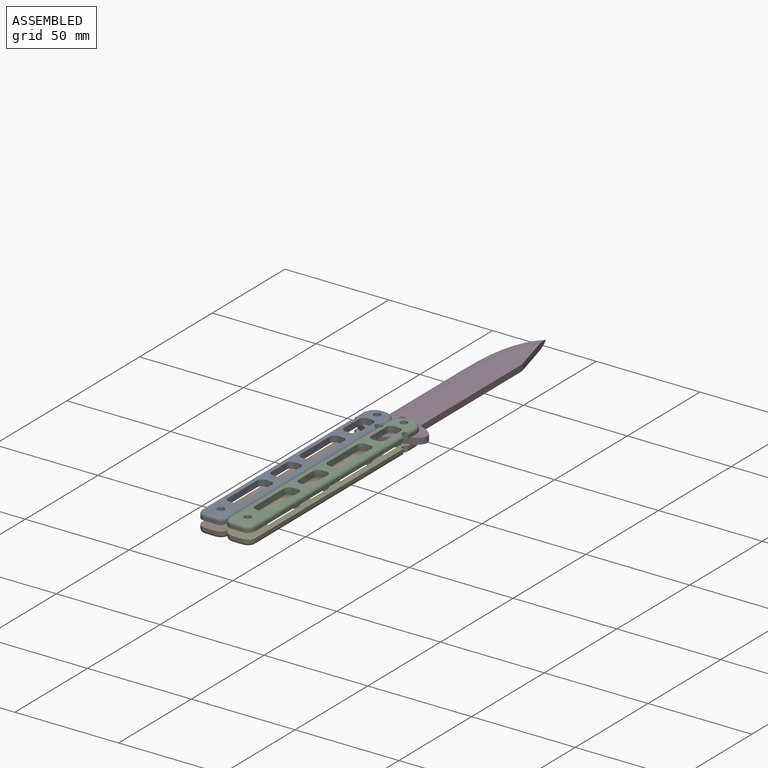
[diagram: assembled view]
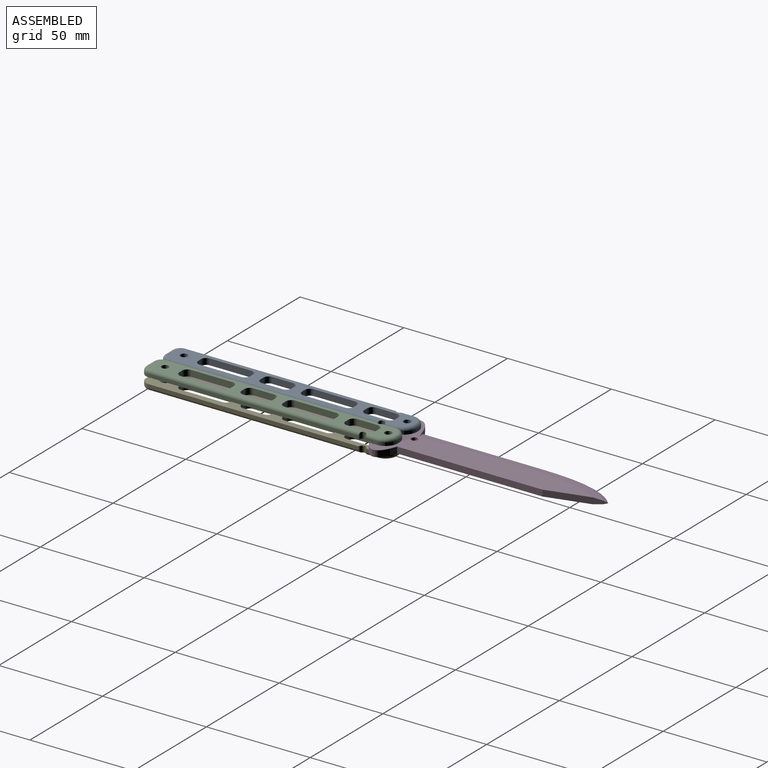
[diagram: assembled view, second angle]
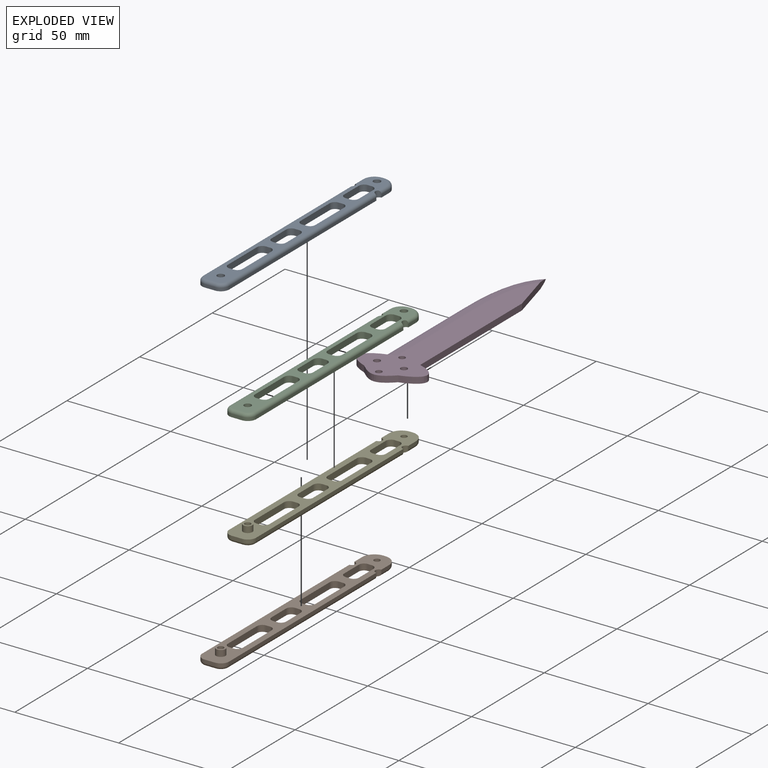
[diagram: exploded view]
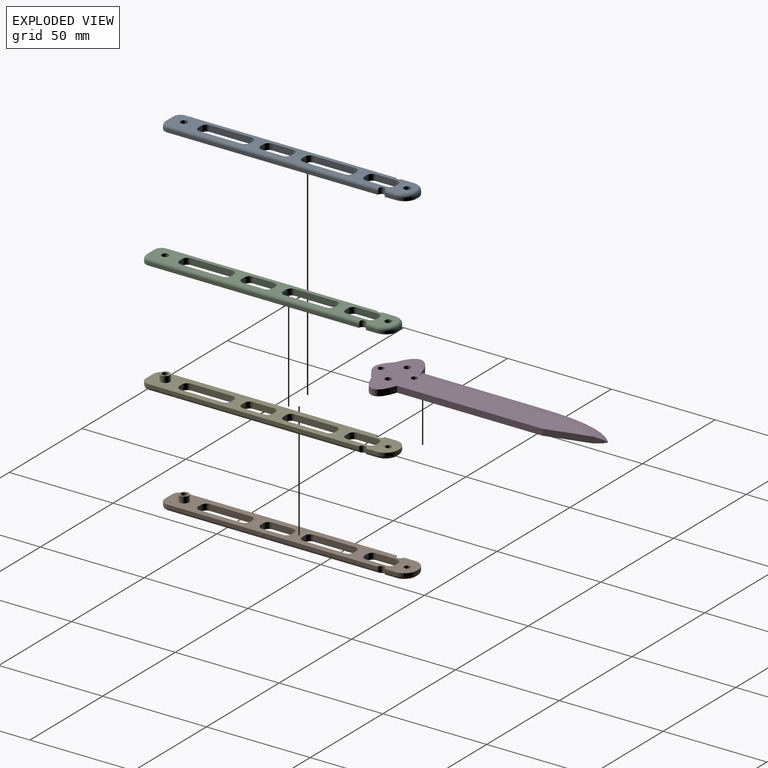
[diagram: exploded view, second angle]
ASSEMBLY  parts=5 mates=4
PART A: 58 faces, bbox 14x120.8x3 mm
  f0: cylinder r=2.5mm len=3mm, axis (0,0,-1), area 11.8mm2, adj f1,f40,f46,f47
  f1: plane 20x3mm, normal (-1,0,0), area 60mm2, adj f0,f2,f46,f47
  f2: cylinder r=2.5mm len=3mm, axis (0,0,-1), area 11.8mm2, adj f1,f3,f46,f47
  f3: plane 3x2mm, normal (0,1,0), area 6mm2, adj f2,f4,f46,f47
  f4: cylinder r=2.5mm len=3mm, axis (0,0,-1), area 11.8mm2, adj f3,f5,f46,f47
  f5: plane 20x3mm, normal (1,0,0), area 60mm2, adj f4,f6,f46,f47
  f6: cylinder r=2.5mm len=3mm, axis (0,0,-1), area 11.8mm2, adj f5,f40,f46,f47
  f7: cylinder r=2.5mm len=3mm, axis (0,0,-1), area 11.8mm2, adj f8,f41,f46,f47
  f8: plane 3x2mm, normal (0,1,0), area 6mm2, adj f7,f9,f46,f47
  f9: cylinder r=2.5mm len=3mm, axis (0,0,-1), area 11.8mm2, adj f8,f10,f46,f47
  f10: plane 10x3mm, normal (1,0,0), area 30mm2, adj f9,f11,f46,f47
  f11: cylinder r=2.5mm len=3mm, axis (0,0,-1), area 11.8mm2, adj f10,f12,f46,f47
  f12: plane 3x2mm, normal (0,-1,0), area 6mm2, adj f11,f13,f46,f47
  f13: cylinder r=2.5mm len=3mm, axis (0,0,-1), area 11.8mm2, adj f12,f41,f46,f47
  f14: cylinder r=2.5mm len=3mm, axis (0,0,-1), area 11.8mm2, adj f15,f42,f46,f47
  f15: plane 20x3mm, normal (-1,0,0), area 60mm2, adj f14,f16,f46,f47
  f16: cylinder r=2.5mm len=3mm, axis (0,0,-1), area 11.8mm2, adj f15,f17,f46,f47
  f17: plane 3x2mm, normal (0,1,0), area 6mm2, adj f16,f18,f46,f47
  f18: cylinder r=2.5mm len=3mm, axis (0,0,-1), area 11.8mm2, adj f17,f19,f46,f47
  f19: plane 20x3mm, normal (1,0,0), area 60mm2, adj f18,f20,f46,f47
  f20: cylinder r=2.5mm len=3mm, axis (0,0,-1), area 11.8mm2, adj f19,f42,f46,f47
  f21: cylinder r=2.5mm len=3mm, axis (0,0,-1), area 11.8mm2, adj f22,f43,f46,f47
  f22: plane 3x2mm, normal (0,1,0), area 6mm2, adj f21,f23,f46,f47
  f23: cylinder r=2.5mm len=3mm, axis (0,0,-1), area 11.8mm2, adj f22,f24,f46,f47
  f24: plane 10x3mm, normal (1,0,0), area 30mm2, adj f23,f25,f46,f47
  f25: cylinder r=2.5mm len=3mm, axis (0,0,-1), area 11.8mm2, adj f24,f26,f46,f47
  f26: plane 3x2mm, normal (0,-1,0), area 6mm2, adj f25,f27,f46,f47
  f27: cylinder r=2.5mm len=3mm, axis (0,0,-1), area 11.8mm2, adj f26,f43,f46,f47
  f28: plane 101.3x1.5mm, normal (1,0,0), area 151.9mm2, adj f29,f44,f47,f54
  f29: cylinder r=1.7mm len=3.4mm, axis (0,0,-1), area 15mm2, adj f28,f30,f46,f47,f49,f54
  f30: plane 5.3x1.5mm, normal (1,0,0), area 7.9mm2, adj f29,f31,f47,f49
  f31: cylinder r=6mm len=6mm, axis (0,0,-1), area 14.1mm2, adj f30,f32,f47,f51
  f32: plane 1.5x1mm, normal (0,1,0), area 1.5mm2, adj f31,f33,f47,f52
  f33: cylinder r=6mm len=6mm, axis (0,0,-1), area 14.1mm2, adj f32,f34,f47,f50
  f34: plane 5.3x1.5mm, normal (-1,0,0), area 7.9mm2, adj f33,f35,f47,f48
  f35: cylinder r=1.7mm len=3.4mm, axis (0,0,-1), area 15mm2, adj f34,f36,f46,f47,f48,f53
  f36: plane 101.3x1.5mm, normal (-1,0,0), area 151.9mm2, adj f35,f37,f47,f53
  f37: cylinder r=4mm len=4mm, axis (0,0,-1), area 9.4mm2, adj f36,f38,f47,f55
  f38: plane 5x1.5mm, normal (0,-1,0), area 7.5mm2, adj f37,f44,f47,f57
  f39: cylinder r=1.7mm len=3.4mm, axis (0,0,-1), area 32mm2, adj f46,f47
  f40: plane 3x2mm, normal (0,-1,0), area 6mm2, adj f0,f6,f46,f47
  f41: plane 10x3mm, normal (-1,0,0), area 30mm2, adj f7,f13,f46,f47
  f42: plane 3x2mm, normal (0,-1,0), area 6mm2, adj f14,f20,f46,f47
  f43: plane 10x3mm, normal (-1,0,0), area 30mm2, adj f21,f27,f46,f47
  f44: cylinder r=4mm len=4mm, axis (0,0,-1), area 9.4mm2, adj f28,f38,f47,f56
  f45: cylinder r=1.7mm len=3.4mm, axis (0,0,-1), area 32mm2, adj f46,f47
  f46: plane 117x10mm, normal (0,0,1), area 601.5mm2, adj f0,f1,f2,f3,f4,f5,f6,f7
  f47: plane 120x13mm, normal (0,0,-1), area 971.9mm2, adj f0,f1,f2,f3,f4,f5,f6,f7
  f48: cylinder r=1.5mm len=6.2mm, axis (0,1,0), area 12.9mm2, adj f34,f35,f46,f50
  f49: cylinder r=1.5mm len=6.2mm, axis (0,-1,0), area 12.9mm2, adj f29,f30,f46,f51
  f50: torus R=4.5mm, axis (0,0,1), area 20.2mm2, adj f33,f46,f48,f52
  f51: torus R=4.5mm, axis (0,0,1), area 20.2mm2, adj f31,f46,f49,f52
  f52: cylinder r=1.5mm len=1.5mm, axis (1,0,0), area 2.4mm2, adj f32,f46,f50,f51
  f53: cylinder r=1.5mm len=102.2mm, axis (0,1,0), area 239.1mm2, adj f35,f36,f46,f55
  f54: cylinder r=1.5mm len=102.2mm, axis (0,-1,0), area 239.1mm2, adj f28,f29,f46,f56
  f55: torus R=2.5mm, axis (0,0,1), area 12.8mm2, adj f37,f46,f53,f57
  f56: torus R=2.5mm, axis (0,0,1), area 12.8mm2, adj f44,f46,f54,f57
  f57: cylinder r=1.5mm len=5mm, axis (-1,0,0), area 11.8mm2, adj f38,f46,f55,f56
PART B: 60 faces, bbox 14x120.8x6 mm
  f0: cylinder r=2.5mm len=3mm, axis (0,0,-1), area 11.8mm2, adj f1,f40,f46,f47
  f1: plane 20x3mm, normal (-1,0,0), area 60mm2, adj f0,f2,f46,f47
  f2: cylinder r=2.5mm len=3mm, axis (0,0,-1), area 11.8mm2, adj f1,f3,f46,f47
  f3: plane 3x2mm, normal (0,1,0), area 6mm2, adj f2,f4,f46,f47
  f4: cylinder r=2.5mm len=3mm, axis (0,0,-1), area 11.8mm2, adj f3,f5,f46,f47
  f5: plane 20x3mm, normal (1,0,0), area 60mm2, adj f4,f6,f46,f47
  f6: cylinder r=2.5mm len=3mm, axis (0,0,-1), area 11.8mm2, adj f5,f40,f46,f47
  f7: cylinder r=2.5mm len=3mm, axis (0,0,-1), area 11.8mm2, adj f8,f41,f46,f47
  f8: plane 3x2mm, normal (0,1,0), area 6mm2, adj f7,f9,f46,f47
  f9: cylinder r=2.5mm len=3mm, axis (0,0,-1), area 11.8mm2, adj f8,f10,f46,f47
  f10: plane 10x3mm, normal (1,0,0), area 30mm2, adj f9,f11,f46,f47
  f11: cylinder r=2.5mm len=3mm, axis (0,0,-1), area 11.8mm2, adj f10,f12,f46,f47
  f12: plane 3x2mm, normal (0,-1,0), area 6mm2, adj f11,f13,f46,f47
  f13: cylinder r=2.5mm len=3mm, axis (0,0,-1), area 11.8mm2, adj f12,f41,f46,f47
  f14: cylinder r=2.5mm len=3mm, axis (0,0,-1), area 11.8mm2, adj f15,f42,f46,f47
  f15: plane 20x3mm, normal (-1,0,0), area 60mm2, adj f14,f16,f46,f47
  f16: cylinder r=2.5mm len=3mm, axis (0,0,-1), area 11.8mm2, adj f15,f17,f46,f47
  f17: plane 3x2mm, normal (0,1,0), area 6mm2, adj f16,f18,f46,f47
  f18: cylinder r=2.5mm len=3mm, axis (0,0,-1), area 11.8mm2, adj f17,f19,f46,f47
  f19: plane 20x3mm, normal (1,0,0), area 60mm2, adj f18,f20,f46,f47
  f20: cylinder r=2.5mm len=3mm, axis (0,0,-1), area 11.8mm2, adj f19,f42,f46,f47
  f21: cylinder r=2.5mm len=3mm, axis (0,0,-1), area 11.8mm2, adj f22,f43,f46,f47
  f22: plane 3x2mm, normal (0,1,0), area 6mm2, adj f21,f23,f46,f47
  f23: cylinder r=2.5mm len=3mm, axis (0,0,-1), area 11.8mm2, adj f22,f24,f46,f47
  f24: plane 10x3mm, normal (1,0,0), area 30mm2, adj f23,f25,f46,f47
  f25: cylinder r=2.5mm len=3mm, axis (0,0,-1), area 11.8mm2, adj f24,f26,f46,f47
  f26: plane 3x2mm, normal (0,-1,0), area 6mm2, adj f25,f27,f46,f47
  f27: cylinder r=2.5mm len=3mm, axis (0,0,-1), area 11.8mm2, adj f26,f43,f46,f47
  f28: plane 101.3x1.5mm, normal (1,0,0), area 151.9mm2, adj f29,f44,f46,f54
  f29: cylinder r=1.7mm len=3.4mm, axis (0,0,-1), area 15mm2, adj f28,f30,f46,f47,f54,f55
  f30: plane 5.3x1.5mm, normal (1,0,0), area 7.9mm2, adj f29,f31,f46,f55
  f31: cylinder r=6mm len=6mm, axis (0,0,-1), area 14.1mm2, adj f30,f32,f46,f56
  f32: plane 1.5x1mm, normal (0,1,0), area 1.5mm2, adj f31,f33,f46,f57
  f33: cylinder r=6mm len=6mm, axis (0,0,-1), area 14.1mm2, adj f32,f34,f46,f59
  f34: plane 5.3x1.5mm, normal (-1,0,0), area 7.9mm2, adj f33,f35,f46,f58
  f35: cylinder r=1.7mm len=3.4mm, axis (0,0,-1), area 15mm2, adj f34,f36,f46,f47,f50,f58
  f36: plane 101.3x1.5mm, normal (-1,0,0), area 151.9mm2, adj f35,f37,f46,f50
  f37: cylinder r=4mm len=4mm, axis (0,0,-1), area 9.4mm2, adj f36,f38,f46,f51
  f38: plane 5x1.5mm, normal (0,-1,0), area 7.5mm2, adj f37,f44,f46,f52
  f39: cylinder r=1.45mm len=3mm, axis (0,0,-1), area 27.3mm2, adj f46,f47
  f40: plane 3x2mm, normal (0,-1,0), area 6mm2, adj f0,f6,f46,f47
  f41: plane 10x3mm, normal (-1,0,0), area 30mm2, adj f7,f13,f46,f47
  f42: plane 3x2mm, normal (0,-1,0), area 6mm2, adj f14,f20,f46,f47
  f43: plane 10x3mm, normal (-1,0,0), area 30mm2, adj f21,f27,f46,f47
  f44: cylinder r=4mm len=4mm, axis (0,0,-1), area 9.4mm2, adj f28,f38,f46,f53
  f45: cylinder r=1.45mm len=6mm, axis (0,0,-1), area 54.7mm2, adj f47,f49
  f46: plane 120x13mm, normal (0,0,1), area 967.6mm2, adj f0,f1,f2,f3,f4,f5,f6,f7
  f47: plane 117x10mm, normal (0,0,-1), area 606.4mm2, adj f0,f1,f2,f3,f4,f5,f6,f7
  f48: cylinder r=2.25mm len=4.5mm, axis (0,0,-1), area 42.4mm2, adj f46,f49
  f49: plane 4.5x4.5mm, normal (0,0,1), area 9.3mm2, adj f45,f48
  f50: cylinder r=1.5mm len=102.2mm, axis (0,-1,0), area 239.1mm2, adj f35,f36,f47,f51
  f51: torus R=2.5mm, axis (0,0,1), area 12.8mm2, adj f37,f47,f50,f52
  f52: cylinder r=1.5mm len=5mm, axis (1,0,0), area 11.8mm2, adj f38,f47,f51,f53
  f53: torus R=2.5mm, axis (0,0,1), area 12.8mm2, adj f44,f47,f52,f54
  f54: cylinder r=1.5mm len=102.2mm, axis (0,1,0), area 239.1mm2, adj f28,f29,f47,f53
  f55: cylinder r=1.5mm len=6.2mm, axis (0,1,0), area 12.9mm2, adj f29,f30,f47,f56
  f56: torus R=4.5mm, axis (0,0,1), area 20.2mm2, adj f31,f47,f55,f57
  f57: cylinder r=1.5mm len=1.5mm, axis (-1,0,0), area 2.4mm2, adj f32,f47,f56,f59
  f58: cylinder r=1.5mm len=6.2mm, axis (0,-1,0), area 12.9mm2, adj f34,f35,f47,f59
  f59: torus R=4.5mm, axis (0,0,1), area 20.2mm2, adj f33,f47,f57,f58
PART C: same geometry as A
PART D: 23 faces, bbox 39.4x117.8x3.9 mm
  f0: extruded ~14.96x12.81mm, area 69.1mm2, adj f1,f9,f10,f11,f13,f16,f18,f20
  f1: extruded ~16.45x4.78mm, area 58.4mm2, adj f0,f2,f9,f10
  f2: extruded ~13x9.35mm, area 68.3mm2, adj f1,f3,f9,f10
  f3: plane 70x3mm, normal (1,0,0), area 210mm2, adj f2,f4,f9,f10
  f4: plane 26.97x7.47mm, normal (0.97,0.26,0), area 75.2mm2, adj f3,f9,f10,f12,f14,f15,f17,f19
  f5: cylinder r=1.6mm len=3.2mm, axis (0,0,-1), area 30.2mm2, adj f9,f10
  f6: cylinder r=1.6mm len=3.2mm, axis (0,0,-1), area 30.2mm2, adj f9,f10
  f7: cylinder r=1.5mm len=3mm, axis (0,0,-1), area 28.3mm2, adj f9,f10
  f8: cylinder r=1.5mm len=3mm, axis (0,0,-1), area 28.3mm2, adj f9,f10
  f9: plane 111.45x39.37mm, normal (0,0,1), area 1407.4mm2, adj f0,f1,f2,f3,f4,f5,f6,f7
  f10: plane 111.45x39.36mm, normal (0,0,-1), area 1407.5mm2, adj f0,f1,f2,f3,f4,f5,f6,f7
  f11: plane 55.04x0.09mm, normal (-0.71,0,0.71), area 6.7mm2, adj f0,f12,f13,f16
  f12: bspline ~41.8x12.05mm, area 5.2mm2, adj f4,f11,f14,f15
  f13: plane 55.04x0.09mm, normal (-0.71,0,-0.71), area 6.7mm2, adj f0,f11,f14,f18
  f14: bspline ~41.8x12.05mm, area 5.4mm2, adj f4,f12,f13,f17
  f15: bspline ~41.63x13.13mm, area 73mm2, adj f4,f12,f16,f19
  f16: plane 55.01x1.57mm, normal (-0.38,0,0.92), area 92.8mm2, adj f0,f11,f15,f20
  f17: bspline ~41.63x13.13mm, area 73mm2, adj f4,f14,f18,f21
  f18: plane 55.01x1.57mm, normal (-0.38,0,-0.92), area 92.8mm2, adj f0,f13,f17,f22
  f19: bspline ~39.95x12.42mm, area 154mm2, adj f4,f9,f15,f20
  f20: plane 54.46x3.85mm, normal (-0.2,0,0.98), area 210.9mm2, adj f0,f9,f16,f19
  f21: bspline ~39.83x12.32mm, area 154mm2, adj f4,f10,f17,f22
  f22: plane 54.46x3.85mm, normal (-0.2,0,-0.98), area 210.9mm2, adj f0,f10,f18,f21
PART E: same geometry as B
PLACE A rot(axis=(1,0,0),0deg) t=(-0.07,-122.96,-17.19)mm
PLACE B rot(axis=(0,0,1),0deg) t=(-6.27,-109.03,-23.19)mm
PLACE C t=(12.93,-122.96,-17.19)mm
PLACE D t=(-8.29,-31.26,-20.19)mm
PLACE E t=(6.73,-109.03,-23.19)mm
MATE revolute A.f39 <-> D.f6  axis (0,0,-1) through (-6.57,-62.86,-17.19)mm
MATE revolute E.f39 <-> D.f5  axis (0,0,1) through (6.43,-62.86,-20.19)mm
MATE revolute C.f39 <-> D.f5  axis (0,0,-1) through (6.43,-62.86,-17.19)mm
MATE revolute B.f39 <-> D.f6  axis (0,0,1) through (-6.57,-62.86,-20.19)mm
